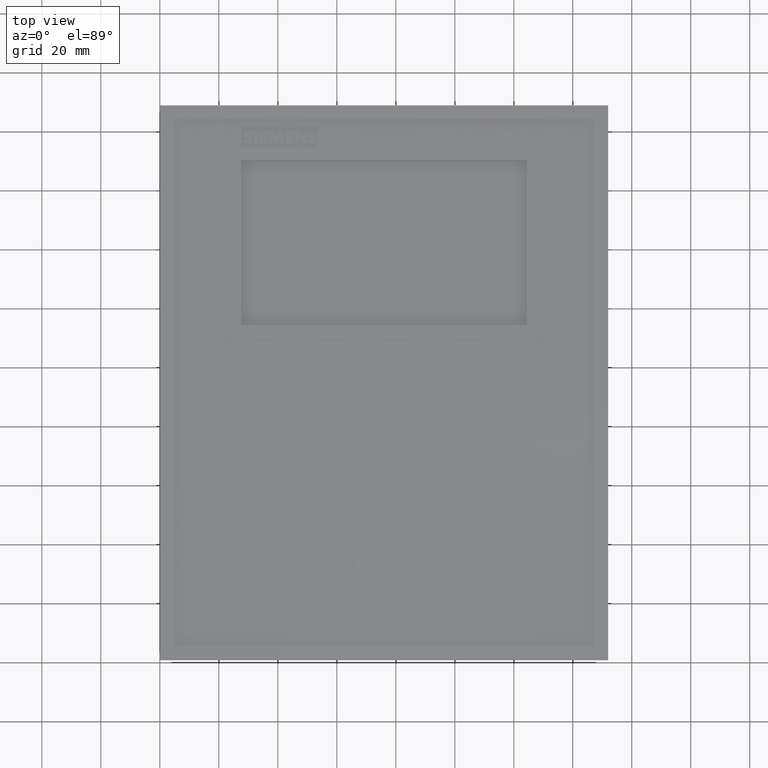
[diagram: clean part render]
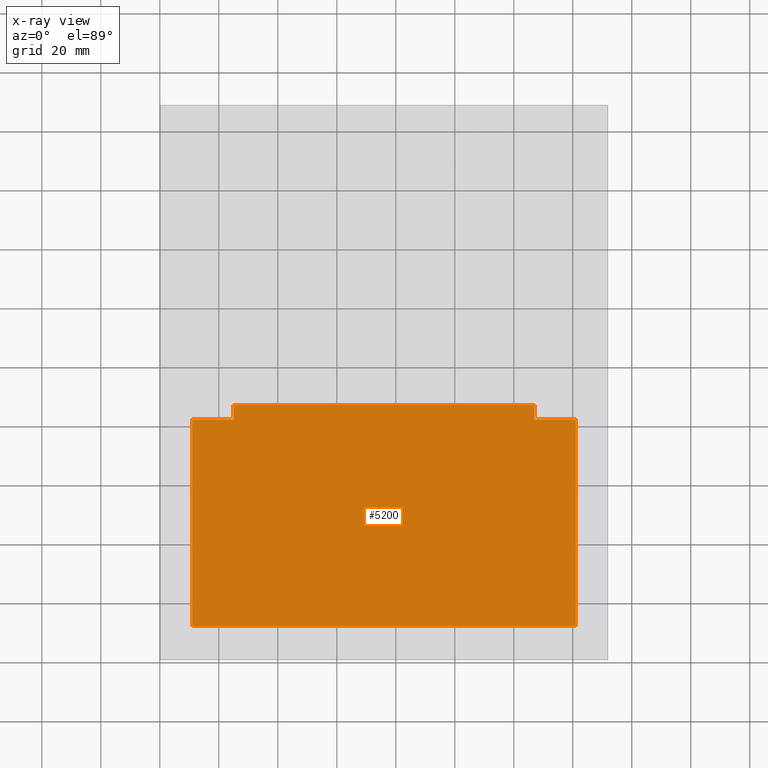
[diagram: x-ray — body ghosted, one internal face saturated and labeled with its STEP entity id]
A machine part, top view, then the same camera in x-ray: the body is ghosted and one INTERNAL B-rep face — a face not visible from any outside direction — is saturated and labeled: STEP entity #5200.
In plain terms, the highlighted planar face has unit normal (0, 0, 1).
Its self-contained STEP definition (entity closure, byte-faithful):
#5200=ADVANCED_FACE('',(#10180),#7783,.T.);
#7783=PLANE('',#51233);
#10180=FACE_OUTER_BOUND('',#12759,.T.);
#12759=EDGE_LOOP('',(#18470,#18471,#18472,#18473,#18474,#18475,#18476,#18477));
#18470=ORIENTED_EDGE('',*,*,#33958,.T.);
#18471=ORIENTED_EDGE('',*,*,#33962,.T.);
#18472=ORIENTED_EDGE('',*,*,#33965,.T.);
#18473=ORIENTED_EDGE('',*,*,#33968,.T.);
#18474=ORIENTED_EDGE('',*,*,#33971,.T.);
#18475=ORIENTED_EDGE('',*,*,#33974,.T.);
#18476=ORIENTED_EDGE('',*,*,#33977,.T.);
#18477=ORIENTED_EDGE('',*,*,#33980,.T.);
#29040=VERTEX_POINT('',#68179);
#29041=VERTEX_POINT('',#68180);
#29044=VERTEX_POINT('',#68188);
#29046=VERTEX_POINT('',#68194);
#29048=VERTEX_POINT('',#68200);
#29050=VERTEX_POINT('',#68206);
#29052=VERTEX_POINT('',#68212);
#29054=VERTEX_POINT('',#68218);
#33958=EDGE_CURVE('',#29040,#29041,#40194,.T.);
#33962=EDGE_CURVE('',#29041,#29044,#40198,.T.);
#33965=EDGE_CURVE('',#29044,#29046,#40201,.T.);
#33968=EDGE_CURVE('',#29046,#29048,#40204,.T.);
#33971=EDGE_CURVE('',#29048,#29050,#40207,.T.);
#33974=EDGE_CURVE('',#29050,#29052,#40210,.T.);
#33977=EDGE_CURVE('',#29052,#29054,#40213,.T.);
#33980=EDGE_CURVE('',#29054,#29040,#40216,.T.);
#40194=LINE('',#68178,#45884);
#40198=LINE('',#68187,#45888);
#40201=LINE('',#68193,#45891);
#40204=LINE('',#68199,#45894);
#40207=LINE('',#68205,#45897);
#40210=LINE('',#68211,#45900);
#40213=LINE('',#68217,#45903);
#40216=LINE('',#68223,#45906);
#45884=VECTOR('',#56454,1.);
#45888=VECTOR('',#56460,1.);
#45891=VECTOR('',#56465,1.);
#45894=VECTOR('',#56470,1.);
#45897=VECTOR('',#56475,1.);
#45900=VECTOR('',#56480,1.);
#45903=VECTOR('',#56485,1.);
#45906=VECTOR('',#56490,1.);
#51233=AXIS2_PLACEMENT_3D('',#68227,#56496,#56497);
#56454=DIRECTION('',(0.,-1.,0.));
#56460=DIRECTION('',(1.,0.,0.));
#56465=DIRECTION('',(0.,-1.,0.));
#56470=DIRECTION('',(1.,0.,0.));
#56475=DIRECTION('',(0.,1.,0.));
#56480=DIRECTION('',(1.,0.,0.));
#56485=DIRECTION('',(0.,1.,0.));
#56490=DIRECTION('',(-1.,0.,0.));
#56496=DIRECTION('',(0.,0.,1.));
#56497=DIRECTION('',(1.,0.,0.));
#68178=CARTESIAN_POINT('',(-65.06590840509,119.12932529197,-6.));
#68179=CARTESIAN_POINT('',(-65.06590840509,119.12932529197,-6.));
#68180=CARTESIAN_POINT('',(-65.06590840509,49.0211066486,-6.));
#68187=CARTESIAN_POINT('',(-65.06590840509,49.0211066486,-6.));
#68188=CARTESIAN_POINT('',(-51.0523651947846,49.0211066486,-6.));
#68193=CARTESIAN_POINT('',(-51.0523651947846,49.0211066486,-6.));
#68194=CARTESIAN_POINT('',(-51.0523651947846,44.1211066486,-6.));
#68199=CARTESIAN_POINT('',(-51.0523651947846,44.1211066486,-6.));
#68200=CARTESIAN_POINT('',(51.0523651947846,44.1211066486,-6.));
#68205=CARTESIAN_POINT('',(51.0523651947847,44.1211066486,-6.));
#68206=CARTESIAN_POINT('',(51.0523651947847,49.0211066486,-6.));
#68211=CARTESIAN_POINT('',(51.0523651947847,49.0211066486,-6.));
#68212=CARTESIAN_POINT('',(65.06590840509,49.0211066486,-6.));
#68217=CARTESIAN_POINT('',(65.06590840509,49.0211066486,-6.));
#68218=CARTESIAN_POINT('',(65.06590840509,119.12932529197,-6.));
#68223=CARTESIAN_POINT('',(65.06590840509,119.12932529197,-6.));
#68227=CARTESIAN_POINT('',(-65.06590840509,49.0211066486,-6.));